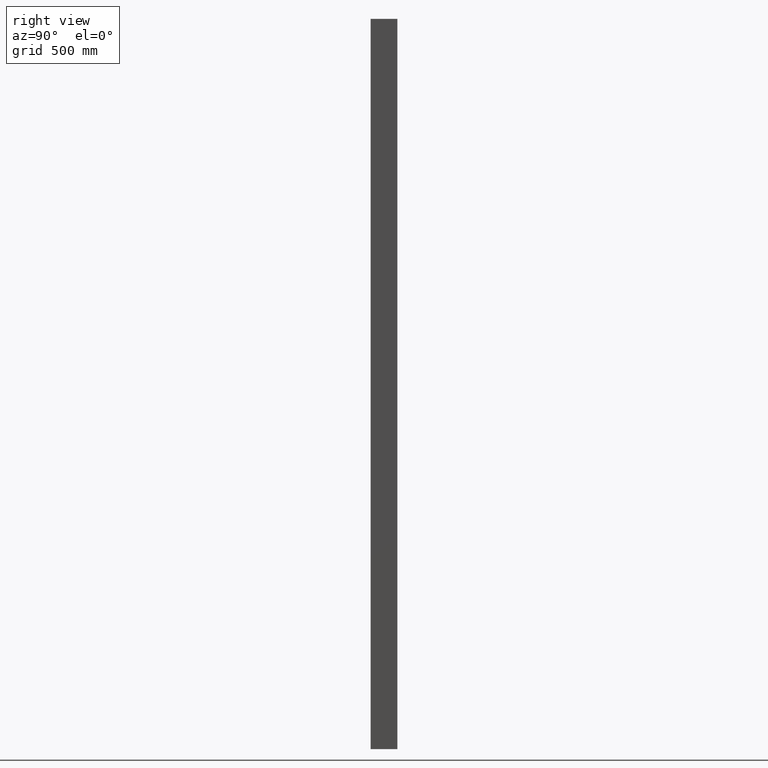
[diagram: clean part render]
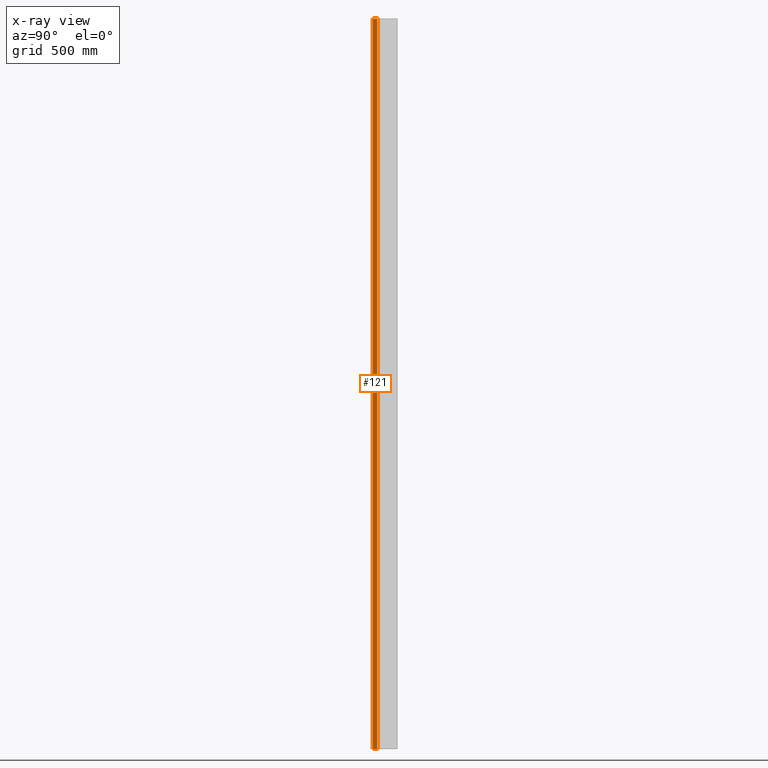
[diagram: x-ray — body ghosted, one internal face saturated and labeled with its STEP entity id]
A machine part, right view, then the same camera in x-ray: the body is ghosted and one INTERNAL B-rep face — a face not visible from any outside direction — is saturated and labeled: STEP entity #121.
In plain terms, the highlighted planar face has unit normal (-1, 0, 0).
Its self-contained STEP definition (entity closure, byte-faithful):
#121 = ADVANCED_FACE ( 'NONE', ( #9376 ), #10633, .F. ) ;
#1727 = DIRECTION ( 'NONE',  ( -1.000000000000000000, 0.0000000000000000000, 0.0000000000000000000 ) ) ;
#1892 = LINE ( 'NONE', #14214, #7392 ) ;
#1980 = CARTESIAN_POINT ( 'NONE',  ( 8.999999999964845900, 8.999999999890851800, 1500.000000000000000 ) ) ;
#2795 = DIRECTION ( 'NONE',  ( -0.0000000000000000000, -0.0000000000000000000, -1.000000000000000000 ) ) ;
#3391 = CARTESIAN_POINT ( 'NONE',  ( 8.999999999964845900, 27.19999999989516200, 1500.000000000000000 ) ) ;
#4462 = VERTEX_POINT ( 'NONE', #5812 ) ;
#5812 = CARTESIAN_POINT ( 'NONE',  ( 8.999999999964845900, 8.999999999890851800, -1500.000000000000000 ) ) ;
#6462 = CARTESIAN_POINT ( 'NONE',  ( 8.999999999964845900, 8.999999999890851800, 1500.000000000000000 ) ) ;
#6614 = LINE ( 'NONE', #7835, #13537 ) ;
#7024 = EDGE_LOOP ( 'NONE', ( #9850, #14894, #14423, #11283 ) ) ;
#7105 = AXIS2_PLACEMENT_3D ( 'NONE', #9476, #1727, #11979 ) ;
#7392 = VECTOR ( 'NONE', #9042, 1000.000000000000000 ) ;
#7824 = EDGE_CURVE ( 'NONE', #8729, #14541, #1892, .T. ) ;
#7835 = CARTESIAN_POINT ( 'NONE',  ( 8.999999999964845900, 27.19999999989516200, 1500.000000000000000 ) ) ;
#8564 = EDGE_CURVE ( 'NONE', #8729, #4462, #12738, .T. ) ;
#8729 = VERTEX_POINT ( 'NONE', #1980 ) ;
#9042 = DIRECTION ( 'NONE',  ( 0.0000000000000000000, 1.000000000000000000, 0.0000000000000000000 ) ) ;
#9218 = CARTESIAN_POINT ( 'NONE',  ( 8.999999999964845900, 8.999999999890851800, -1500.000000000000000 ) ) ;
#9376 = FACE_OUTER_BOUND ( 'NONE', #7024, .T. ) ;
#9476 = CARTESIAN_POINT ( 'NONE',  ( 8.999999999964845900, 8.999999999890851800, 1500.000000000000000 ) ) ;
#9850 = ORIENTED_EDGE ( 'NONE', *, *, #12136, .T. ) ;
#10097 = VERTEX_POINT ( 'NONE', #15801 ) ;
#10370 = DIRECTION ( 'NONE',  ( -0.0000000000000000000, -0.0000000000000000000, -1.000000000000000000 ) ) ;
#10633 = PLANE ( 'NONE',  #7105 ) ;
#11283 = ORIENTED_EDGE ( 'NONE', *, *, #8564, .T. ) ;
#11979 = DIRECTION ( 'NONE',  ( 0.0000000000000000000, 0.0000000000000000000, 1.000000000000000000 ) ) ;
#12136 = EDGE_CURVE ( 'NONE', #4462, #10097, #12474, .T. ) ;
#12474 = LINE ( 'NONE', #9218, #14339 ) ;
#12593 = EDGE_CURVE ( 'NONE', #14541, #10097, #6614, .T. ) ;
#12738 = LINE ( 'NONE', #6462, #15770 ) ;
#13537 = VECTOR ( 'NONE', #10370, 1000.000000000000000 ) ;
#14214 = CARTESIAN_POINT ( 'NONE',  ( 8.999999999964845900, 8.999999999890851800, 1500.000000000000000 ) ) ;
#14339 = VECTOR ( 'NONE', #15718, 1000.000000000000000 ) ;
#14423 = ORIENTED_EDGE ( 'NONE', *, *, #7824, .F. ) ;
#14541 = VERTEX_POINT ( 'NONE', #3391 ) ;
#14894 = ORIENTED_EDGE ( 'NONE', *, *, #12593, .F. ) ;
#15718 = DIRECTION ( 'NONE',  ( 0.0000000000000000000, 1.000000000000000000, 0.0000000000000000000 ) ) ;
#15770 = VECTOR ( 'NONE', #2795, 1000.000000000000000 ) ;
#15801 = CARTESIAN_POINT ( 'NONE',  ( 8.999999999964845900, 27.19999999989516200, -1500.000000000000000 ) ) ;